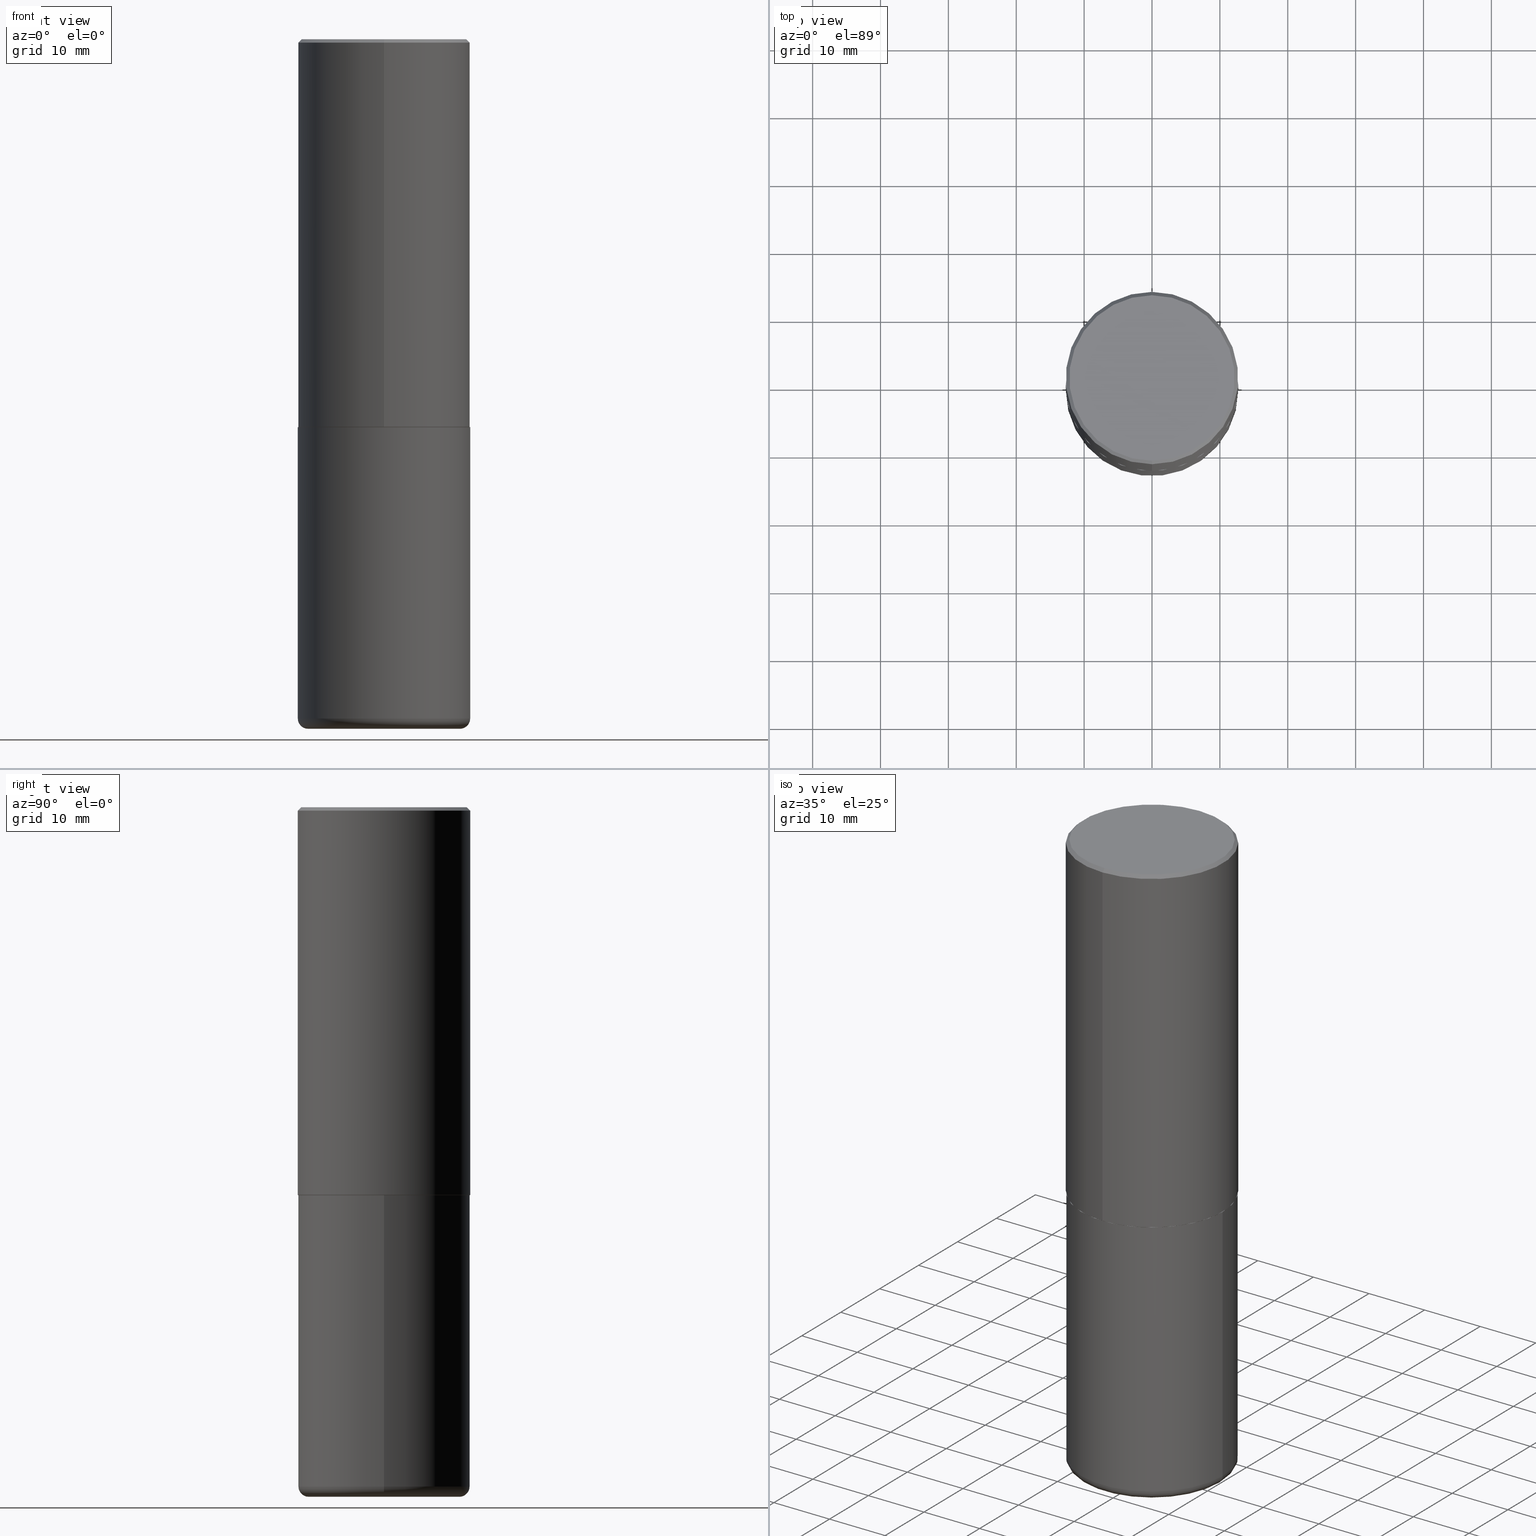
[diagram: canonical four-view strip — front | top / right | iso, engineering-drawing reading convention]
A machine part, canonical four-view strip (front | top / right | iso — engineering-drawing reading convention). The complete STEP part file that produces these views, byte-faithful:
ISO-10303-21;
HEADER;
FILE_DESCRIPTION (( 'STEP AP203' ),
    '1' );
FILE_NAME ('36129.STEP',
    '2024-03-01T15:52:18',
    ( '' ),
    ( '' ),
    'SwSTEP 2.0',
    'SolidWorks 2023',
    '' );
FILE_SCHEMA (( 'CONFIG_CONTROL_DESIGN' ));
ENDSEC;

DATA;
#1 = DIRECTION ( 'NONE',  ( 1.000000000000000000, -6.982962677686266711E-15, 0.000000000000000000 ) ) ;
#2 = ORGANIZATION ( 'UNSPECIFIED', 'UNSPECIFIED', '' ) ;
#3 = DIRECTION ( 'NONE',  ( -6.982962677686265922E-15, -1.000000000000000000, 3.491643216902136408E-15 ) ) ;
#4 = ADVANCED_FACE ( 'NONE', ( #365 ), #34, .T. ) ;
#5 = CARTESIAN_POINT ( 'NONE',  ( -0.5000000000000000000, 3.552713678800500929E-15, -2.459467545127452891E-29 ) ) ;
#6 = DIRECTION ( 'NONE',  ( -2.446529474774470711E-29, 3.489962401053712253E-15, 1.000000000000000000 ) ) ;
#7 = CARTESIAN_POINT ( 'NONE',  ( 0.4400000000000000022, -1.682894005322395074E-14, -3.939999999999999947 ) ) ;
#8 = CARTESIAN_POINT ( 'NONE',  ( 0.000000000000000000, 0.000000000000000000, 0.000000000000000000 ) ) ;
#9 = DIRECTION ( 'NONE',  ( -2.446529474774470711E-29, 3.489962401053712253E-15, 1.000000000000000000 ) ) ;
#10 = EDGE_CURVE ( 'NONE', #362, #141, #398, .T. ) ;
#11 = APPLICATION_CONTEXT ( 'configuration controlled 3d designs of mechanical parts and assemblies' ) ;
#12 = FACE_OUTER_BOUND ( 'NONE', #15, .T. ) ;
#13 = CIRCLE ( 'NONE', #256, 0.05999999999999997696 ) ;
#14 = DIRECTION ( 'NONE',  ( 2.438088387897960049E-29, -3.491481338843145188E-15, -1.000000000000000000 ) ) ;
#15 = EDGE_LOOP ( 'NONE', ( #271, #108, #394, #323 ) ) ;
#16 = PRODUCT_DEFINITION ( 'UNKNOWN', '', #72, #207 ) ;
#17 = ORIENTED_EDGE ( 'NONE', *, *, #296, .T. ) ;
#18 = FACE_OUTER_BOUND ( 'NONE', #206, .T. ) ;
#19 = DIRECTION ( 'NONE',  ( -2.445468806185136877E-29, 3.491481338843145188E-15, 1.000000000000000000 ) ) ;
#20 = AXIS2_PLACEMENT_3D ( 'NONE', #44, #14, #107 ) ;
#21 = AXIS2_PLACEMENT_3D ( 'NONE', #8, #340, #76 ) ;
#22 = AXIS2_PLACEMENT_3D ( 'NONE', #186, #409, #373 ) ;
#23 = DIRECTION ( 'NONE',  ( -2.446529474774470711E-29, 3.489962401053712253E-15, 1.000000000000000000 ) ) ;
#24 = ORIENTED_EDGE ( 'NONE', *, *, #221, .T. ) ;
#25 = APPROVAL_PERSON_ORGANIZATION ( #268, #381, #389 ) ;
#26 = EDGE_LOOP ( 'NONE', ( #328, #80, #267, #232 ) ) ;
#27 = PERSON_AND_ORGANIZATION_ROLE ( 'creator' ) ;
#28 = FACE_OUTER_BOUND ( 'NONE', #248, .T. ) ;
#29 = CC_DESIGN_PERSON_AND_ORGANIZATION_ASSIGNMENT ( #374, #60, ( #212 ) ) ;
#30 = PERSON_AND_ORGANIZATION ( #43, #2 ) ;
#31 =( CONVERSION_BASED_UNIT ( 'INCH', #166 ) LENGTH_UNIT ( ) NAMED_UNIT ( #250 ) );
#32 = CARTESIAN_POINT ( 'NONE',  ( 5.502304813916557343E-29, -7.855833012397078448E-15, -2.250000000000000000 ) ) ;
#33 = DIRECTION ( 'NONE',  ( -6.982962677686265922E-15, -1.000000000000000000, 3.284787166730577015E-15 ) ) ;
#34 = CONICAL_SURFACE ( 'NONE', #50, 0.4989999999999999991, 0.7853981633975507526 ) ;
#35 = SECURITY_CLASSIFICATION ( '', '', #98 ) ;
#36 = DIRECTION ( 'NONE',  ( 2.446529474774470711E-29, -3.489962401053712253E-15, -1.000000000000000000 ) ) ;
#37 = PRODUCT_DEFINITION_SHAPE ( 'NONE', 'NONE',  #16 ) ;
#38 = CYLINDRICAL_SURFACE ( 'NONE', #231, 0.5000000000000001110 ) ;
#39 = CARTESIAN_POINT ( 'NONE',  ( 5.504691318242558820E-29, -7.852415402370853556E-15, -2.250000000000000000 ) ) ;
#40 = CARTESIAN_POINT ( 'NONE',  ( 0.000000000000000000, 0.000000000000000000, 0.000000000000000000 ) ) ;
#41 = PLANE ( 'NONE',  #20 ) ;
#42 = ORIENTED_EDGE ( 'NONE', *, *, #147, .T. ) ;
#43 = PERSON ( 'UNSPECIFIED', 'UNSPECIFIED', 'UNSPECIFIED', ('UNSPECIFIED'), ('UNSPECIFIED'), ('UNSPECIFIED') ) ;
#44 = CARTESIAN_POINT ( 'NONE',  ( 5.502304813916557343E-29, -7.855833012397078448E-15, -2.250000000000000000 ) ) ;
#45 = ORIENTED_EDGE ( 'NONE', *, *, #99, .F. ) ;
#46 = CARTESIAN_POINT ( 'NONE',  ( 5.504691318242558820E-29, -7.852415402370853556E-15, -2.250000000000000000 ) ) ;
#47 = PERSON_AND_ORGANIZATION ( #43, #2 ) ;
#48 = APPROVAL_ROLE ( '' ) ;
#49 = DIRECTION ( 'NONE',  ( -6.982962677686266711E-15, -1.000000000000000000, 3.278217592397114284E-15 ) ) ;
#50 = AXIS2_PLACEMENT_3D ( 'NONE', #274, #6, #133 ) ;
#51 = CC_DESIGN_SECURITY_CLASSIFICATION ( #35, ( #72 ) ) ;
#52 = ADVANCED_FACE ( 'NONE', ( #12 ), #100, .T. ) ;
#53 = FACE_OUTER_BOUND ( 'NONE', #196, .T. ) ;
#54 = COORDINATED_UNIVERSAL_TIME_OFFSET ( 5, 0, .BEHIND. ) ;
#55 = CARTESIAN_POINT ( 'NONE',  ( 0.4400000000000000022, -1.703842893355454063E-14, -4.000000000000000000 ) ) ;
#56 = AXIS2_PLACEMENT_3D ( 'NONE', #163, #361, #331 ) ;
#57 = CARTESIAN_POINT ( 'NONE',  ( 4.893058949548968117E-31, -6.979924802107460893E-17, -0.02000000000000010797 ) ) ;
#58 = VECTOR ( 'NONE', #330, 39.37007874015748143 ) ;
#59 = LOCAL_TIME ( 10, 52, 18.00000000000000000, #165 ) ;
#60 = PERSON_AND_ORGANIZATION_ROLE ( 'design_owner' ) ;
#61 = ORIENTED_EDGE ( 'NONE', *, *, #296, .F. ) ;
#62 = EDGE_CURVE ( 'NONE', #336, #170, #401, .T. ) ;
#63 = APPLICATION_PROTOCOL_DEFINITION ( 'international standard', 'config_control_design', 1994, #78 ) ;
#64 = VECTOR ( 'NONE', #169, 39.37007874015748143 ) ;
#65 = DIRECTION ( 'NONE',  ( -2.445468806185136597E-29, 3.491481338843145583E-15, 1.000000000000000000 ) ) ;
#66 = ADVANCED_FACE ( 'NONE', ( #252 ), #312, .T. ) ;
#67 = VERTEX_POINT ( 'NONE', #308 ) ;
#68 = DATE_AND_TIME ( #197, #172 ) ;
#69 = CYLINDRICAL_SURFACE ( 'NONE', #257, 0.5000000000000000000 ) ;
#70 = DIRECTION ( 'NONE',  ( 1.000000000000000000, -6.982962677686266711E-15, 0.000000000000000000 ) ) ;
#71 = ORIENTED_EDGE ( 'NONE', *, *, #171, .T. ) ;
#72 = PRODUCT_DEFINITION_FORMATION_WITH_SPECIFIED_SOURCE ( 'ANY', '', #212, .NOT_KNOWN. ) ;
#73 = ORIENTED_EDGE ( 'NONE', *, *, #149, .T. ) ;
#74 = MECHANICAL_CONTEXT ( 'NONE', #11, 'mechanical' ) ;
#75 = LINE ( 'NONE', #5, #58 ) ;
#76 = DIRECTION ( 'NONE',  ( -6.982962677686265922E-15, -1.000000000000000000, 3.489962401053712253E-15 ) ) ;
#77 = EDGE_CURVE ( 'NONE', #410, #158, #280, .T. ) ;
#78 = APPLICATION_CONTEXT ( 'configuration controlled 3d designs of mechanical parts and assemblies' ) ;
#79 = FACE_OUTER_BOUND ( 'NONE', #190, .T. ) ;
#80 = ORIENTED_EDGE ( 'NONE', *, *, #195, .T. ) ;
#81 = CARTESIAN_POINT ( 'NONE',  ( -6.039126734728155395E-45, 8.614784925631203934E-31, 2.468446342868958109E-16 ) ) ;
#82 = ORIENTED_EDGE ( 'NONE', *, *, #127, .F. ) ;
#83 = CIRCLE ( 'NONE', #320, 0.4799999999999996492 ) ;
#84 = AXIS2_PLACEMENT_3D ( 'NONE', #7, #210, #397 ) ;
#85 = DIRECTION ( 'NONE',  ( -6.982962677686265922E-15, -1.000000000000000000, 3.489962401053711859E-15 ) ) ;
#86 = ADVANCED_FACE ( 'NONE', ( #345 ), #151, .T. ) ;
#87 = ORIENTED_EDGE ( 'NONE', *, *, #403, .T. ) ;
#88 = CARTESIAN_POINT ( 'NONE',  ( 9.635147096369438236E-29, -1.375643647504199401E-14, -3.939999999999999947 ) ) ;
#89 = CARTESIAN_POINT ( 'NONE',  ( 4.893058949548968117E-31, -6.979924802107460893E-17, -0.02000000000000010797 ) ) ;
#90 = CLOSED_SHELL ( 'NONE', ( #52, #66, #408, #86, #258, #4, #377, #327 ) ) ;
#91 = DIRECTION ( 'NONE',  ( -2.445468806185136597E-29, 3.491481338843145583E-15, 1.000000000000000000 ) ) ;
#92 = ADVANCED_BREP_SHAPE_REPRESENTATION ( '36129', ( #276, #405, #94 ), #375 ) ;
#93 = VECTOR ( 'NONE', #254, 39.37007874015748143 ) ;
#94 = AXIS2_PLACEMENT_3D ( 'NONE', #40, #96, #125 ) ;
#95 = DIRECTION ( 'NONE',  ( -2.446529474774470711E-29, 3.489962401053712253E-15, 1.000000000000000000 ) ) ;
#96 = DIRECTION ( 'NONE',  ( 0.000000000000000000, 0.000000000000000000, 1.000000000000000000 ) ) ;
#97 = CARTESIAN_POINT ( 'NONE',  ( -6.039126734728155395E-45, 8.614784925631203934E-31, 2.468446342868958109E-16 ) ) ;
#98 = SECURITY_CLASSIFICATION_LEVEL ( 'unclassified' ) ;
#99 = EDGE_CURVE ( 'NONE', #362, #410, #213, .T. ) ;
#100 = CONICAL_SURFACE ( 'NONE', #315, 0.4989999999999999991, 0.7853981633975507526 ) ;
#101 = AXIS2_PLACEMENT_3D ( 'NONE', #32, #106, #295 ) ;
#102 = VERTEX_POINT ( 'NONE', #404 ) ;
#103 = PLANE ( 'NONE',  #117 ) ;
#104 = ORIENTED_EDGE ( 'NONE', *, *, #351, .T. ) ;
#105 = COORDINATED_UNIVERSAL_TIME_OFFSET ( 5, 0, .BEHIND. ) ;
#106 = DIRECTION ( 'NONE',  ( -2.445468806185136597E-29, 3.491481338843145583E-15, 1.000000000000000000 ) ) ;
#107 = DIRECTION ( 'NONE',  ( -1.000000000000000000, 6.982962677686265922E-15, -4.876176775795935793E-29 ) ) ;
#108 = ORIENTED_EDGE ( 'NONE', *, *, #265, .T. ) ;
#109 = CARTESIAN_POINT ( 'NONE',  ( 9.781875224740546387E-29, -1.396592535537258233E-14, -4.000000000000000000 ) ) ;
#110 = AXIS2_PLACEMENT_3D ( 'NONE', #343, #179, #290 ) ;
#111 = ORIENTED_EDGE ( 'NONE', *, *, #171, .F. ) ;
#112 = EDGE_LOOP ( 'NONE', ( #123, #24, #334, #45 ) ) ;
#113 = ORIENTED_EDGE ( 'NONE', *, *, #333, .F. ) ;
#114 = EDGE_CURVE ( 'NONE', #67, #132, #176, .T. ) ;
#115 = ORIENTED_EDGE ( 'NONE', *, *, #396, .F. ) ;
#116 = VECTOR ( 'NONE', #305, 39.37007874015748143 ) ;
#117 = AXIS2_PLACEMENT_3D ( 'NONE', #193, #272, #363 ) ;
#118 = DIRECTION ( 'NONE',  ( -4.851104656540961119E-15, -0.7071067811865495711, -0.7071067811865454633 ) ) ;
#119 = DIRECTION ( 'NONE',  ( -2.445468806185136597E-29, 3.491481338843145583E-15, 1.000000000000000000 ) ) ;
#120 = ADVANCED_FACE ( 'NONE', ( #53 ), #242, .T. ) ;
#121 = VERTEX_POINT ( 'NONE', #292 ) ;
#122 = CC_DESIGN_DATE_AND_TIME_ASSIGNMENT ( #68, #329, ( #35 ) ) ;
#123 = ORIENTED_EDGE ( 'NONE', *, *, #265, .F. ) ;
#124 = DATE_TIME_ROLE ( 'creation_date' ) ;
#125 = DIRECTION ( 'NONE',  ( 1.000000000000000000, 0.000000000000000000, 0.000000000000000000 ) ) ;
#126 = CARTESIAN_POINT ( 'NONE',  ( -0.5000000000000000000, -7.253421064919035302E-15, -2.250000000000000000 ) ) ;
#127 = EDGE_CURVE ( 'NONE', #164, #132, #380, .T. ) ;
#128 = PERSON_AND_ORGANIZATION ( #43, #2 ) ;
#129 = VERTEX_POINT ( 'NONE', #286 ) ;
#130 = SHAPE_DEFINITION_REPRESENTATION ( #37, #92 ) ;
#131 = AXIS2_PLACEMENT_3D ( 'NONE', #360, #417, #1 ) ;
#132 = VERTEX_POINT ( 'NONE', #407 ) ;
#133 = DIRECTION ( 'NONE',  ( -6.982962677686265922E-15, -1.000000000000000000, 3.284787166730577015E-15 ) ) ;
#134 = CALENDAR_DATE ( 2024, 1, 3 ) ;
#135 = CARTESIAN_POINT ( 'NONE',  ( 0.000000000000000000, 0.000000000000000000, 0.000000000000000000 ) ) ;
#136 = CARTESIAN_POINT ( 'NONE',  ( 3.545608251442954353E-15, 0.4989999999999921165, -2.250000000000001776 ) ) ;
#137 = ORIENTED_EDGE ( 'NONE', *, *, #62, .F. ) ;
#138 = AXIS2_PLACEMENT_3D ( 'NONE', #287, #91, #379 ) ;
#139 = ORIENTED_EDGE ( 'NONE', *, *, #235, .T. ) ;
#140 = CARTESIAN_POINT ( 'NONE',  ( 0.000000000000000000, 0.000000000000000000, 0.000000000000000000 ) ) ;
#141 = VERTEX_POINT ( 'NONE', #180 ) ;
#142 = ADVANCED_FACE ( 'NONE', ( #317 ), #319, .T. ) ;
#143 = ORIENTED_EDGE ( 'NONE', *, *, #288, .F. ) ;
#144 = AXIS2_PLACEMENT_3D ( 'NONE', #378, #146, #49 ) ;
#145 = LINE ( 'NONE', #346, #293 ) ;
#146 = DIRECTION ( 'NONE',  ( -2.446529474774470711E-29, 3.489962401053712253E-15, 1.000000000000000000 ) ) ;
#147 = EDGE_CURVE ( 'NONE', #102, #158, #145, .T. ) ;
#148 = DIRECTION ( 'NONE',  ( 6.982962677686265922E-15, 1.000000000000000000, -3.491643216902136408E-15 ) ) ;
#149 = EDGE_CURVE ( 'NONE', #410, #362, #269, .T. ) ;
#150 = VERTEX_POINT ( 'NONE', #55 ) ;
#151 = CONICAL_SURFACE ( 'NONE', #384, 0.5000000000000000000, 0.7853981633974477239 ) ;
#152 = PLANE ( 'NONE',  #22 ) ;
#153 = ORIENTED_EDGE ( 'NONE', *, *, #195, .F. ) ;
#154 = PERSON_AND_ORGANIZATION ( #43, #2 ) ;
#155 = DIRECTION ( 'NONE',  ( 1.000000000000000000, -6.982962677686266711E-15, 0.000000000000000000 ) ) ;
#156 = EDGE_CURVE ( 'NONE', #391, #121, #13, .T. ) ;
#157 = APPROVAL_STATUS ( 'not_yet_approved' ) ;
#158 = VERTEX_POINT ( 'NONE', #414 ) ;
#159 = APPROVAL_DATE_TIME ( #191, #381 ) ;
#160 = FACE_OUTER_BOUND ( 'NONE', #353, .T. ) ;
#161 = CIRCLE ( 'NONE', #300, 0.4989999999999999991 ) ;
#162 = AXIS2_PLACEMENT_3D ( 'NONE', #81, #95, #85 ) ;
#163 = CARTESIAN_POINT ( 'NONE',  ( 9.781875224740546387E-29, -1.396592535537258233E-14, -4.000000000000000000 ) ) ;
#164 = VERTEX_POINT ( 'NONE', #126 ) ;
#165 = COORDINATED_UNIVERSAL_TIME_OFFSET ( 5, 0, .BEHIND. ) ;
#166 = LENGTH_MEASURE_WITH_UNIT ( LENGTH_MEASURE( 0.02539999999999999897 ), #204 );
#167 = DIRECTION ( 'NONE',  ( -6.982962677686265922E-15, -1.000000000000000000, 3.489962401053712253E-15 ) ) ;
#168 = ORIENTED_EDGE ( 'NONE', *, *, #344, .F. ) ;
#169 = DIRECTION ( 'NONE',  ( -4.937700262165053702E-15, -0.7071067811866175168, 0.7071067811864775177 ) ) ;
#170 = VERTEX_POINT ( 'NONE', #266 ) ;
#171 = EDGE_CURVE ( 'NONE', #129, #102, #83, .T. ) ;
#172 = LOCAL_TIME ( 10, 52, 18.00000000000000000, #105 ) ;
#173 = ORIENTED_EDGE ( 'NONE', *, *, #114, .F. ) ;
#174 = CARTESIAN_POINT ( 'NONE',  ( 9.635147096369438236E-29, -1.375643647504199401E-14, -3.939999999999999947 ) ) ;
#175 = DIRECTION ( 'NONE',  ( -2.446529474774470711E-29, 3.489962401053712253E-15, 1.000000000000000000 ) ) ;
#176 = LINE ( 'NONE', #376, #324 ) ;
#177 = AXIS2_PLACEMENT_3D ( 'NONE', #230, #234, #413 ) ;
#178 = ADVANCED_FACE ( 'NONE', ( #307 ), #352, .T. ) ;
#179 = DIRECTION ( 'NONE',  ( -2.446529474774470711E-29, 3.489962401053712253E-15, 1.000000000000000000 ) ) ;
#180 = CARTESIAN_POINT ( 'NONE',  ( 3.491481338843133355E-15, 0.4999999999999999445, -0.02000000000000185310 ) ) ;
#181 = CARTESIAN_POINT ( 'NONE',  ( 0.000000000000000000, 0.000000000000000000, 0.000000000000000000 ) ) ;
#182 = ADVANCED_FACE ( 'NONE', ( #368 ), #41, .F. ) ;
#183 = AXIS2_PLACEMENT_3D ( 'NONE', #174, #205, #236 ) ;
#184 = CC_DESIGN_APPROVAL ( #371, ( #16 ) ) ;
#185 = CC_DESIGN_DATE_AND_TIME_ASSIGNMENT ( #416, #124, ( #16 ) ) ;
#186 = CARTESIAN_POINT ( 'NONE',  ( 3.351822085289405181E-15, 0.4799999999999996492, -1.551759635362332947E-15 ) ) ;
#187 = DIRECTION ( 'NONE',  ( 7.105427357601001859E-15, 1.000000000000000000, -3.491481338843145583E-15 ) ) ;
#188 = ORIENTED_EDGE ( 'NONE', *, *, #415, .F. ) ;
#189 = DIRECTION ( 'NONE',  ( -1.000000000000000000, 7.105427357600993970E-15, 0.000000000000000000 ) ) ;
#190 = EDGE_LOOP ( 'NONE', ( #188, #153 ) ) ;
#191 = DATE_AND_TIME ( #354, #59 ) ;
#192 = AXIS2_PLACEMENT_3D ( 'NONE', #181, #321, #219 ) ;
#193 = CARTESIAN_POINT ( 'NONE',  ( 5.504691318242558820E-29, -7.852415402370853556E-15, -2.250000000000000000 ) ) ;
#194 = CIRCLE ( 'NONE', #291, 0.5000000000000000000 ) ;
#195 = EDGE_CURVE ( 'NONE', #391, #150, #261, .T. ) ;
#196 = EDGE_LOOP ( 'NONE', ( #349, #208, #113, #143 ) ) ;
#197 = CALENDAR_DATE ( 2024, 1, 3 ) ;
#198 = CARTESIAN_POINT ( 'NONE',  ( 4.893058949548968117E-31, -6.979924802107460893E-17, -0.02000000000000010797 ) ) ;
#199 = ORIENTED_EDGE ( 'NONE', *, *, #221, .F. ) ;
#200 = PERSON_AND_ORGANIZATION_ROLE ( 'creator' ) ;
#201 = DIRECTION ( 'NONE',  ( 6.982962677686265922E-15, 1.000000000000000000, -3.491643216902136408E-15 ) ) ;
#202 = CARTESIAN_POINT ( 'NONE',  ( 5.504691318242558820E-29, -7.852415402370853556E-15, -2.250000000000000000 ) ) ;
#203 = APPROVAL_DATE_TIME ( #418, #341 ) ;
#204 =( LENGTH_UNIT ( ) NAMED_UNIT ( * ) SI_UNIT ( $, .METRE. ) );
#205 = DIRECTION ( 'NONE',  ( -2.445468806185136597E-29, 3.491481338843145583E-15, 1.000000000000000000 ) ) ;
#206 = EDGE_LOOP ( 'NONE', ( #71, #17 ) ) ;
#207 = DESIGN_CONTEXT ( 'detailed design', #78, 'design' ) ;
#208 = ORIENTED_EDGE ( 'NONE', *, *, #156, .T. ) ;
#209 = EDGE_CURVE ( 'NONE', #121, #164, #75, .T. ) ;
#210 = DIRECTION ( 'NONE',  ( -6.982962677686266711E-15, -1.000000000000000000, 3.491481338843145583E-15 ) ) ;
#211 = ORIENTED_EDGE ( 'NONE', *, *, #77, .T. ) ;
#212 = PRODUCT ( '36129', '36129', '', ( #74 ) ) ;
#213 = CIRCLE ( 'NONE', #144, 0.5000000000000002220 ) ;
#214 = CIRCLE ( 'NONE', #84, 0.05999999999999997696 ) ;
#215 = EDGE_LOOP ( 'NONE', ( #61, #42, #339, #284 ) ) ;
#216 = DIRECTION ( 'NONE',  ( -2.446529474774470711E-29, 3.489962401053712253E-15, 1.000000000000000000 ) ) ;
#217 = DATE_AND_TIME ( #243, #347 ) ;
#218 = AXIS2_PLACEMENT_3D ( 'NONE', #46, #175, #245 ) ;
#219 = DIRECTION ( 'NONE',  ( 1.000000000000000000, -6.982962677686266711E-15, 4.876176775795935793E-29 ) ) ;
#220 = CIRCLE ( 'NONE', #177, 0.5000000000000000000 ) ;
#221 = EDGE_CURVE ( 'NONE', #170, #336, #161, .T. ) ;
#222 = DIRECTION ( 'NONE',  ( -2.445468806185136597E-29, 3.491481338843145583E-15, 1.000000000000000000 ) ) ;
#223 = CLOSED_SHELL ( 'NONE', ( #142, #120, #182, #390, #178, #226 ) ) ;
#224 = APPROVAL_PERSON_ORGANIZATION ( #30, #341, #275 ) ;
#225 = APPROVAL_DATE_TIME ( #217, #371 ) ;
#226 = ADVANCED_FACE ( 'NONE', ( #79 ), #239, .T. ) ;
#227 = APPROVAL_STATUS ( 'not_yet_approved' ) ;
#228 = CARTESIAN_POINT ( 'NONE',  ( -3.484498376165391726E-15, -0.4990000000000078262, -2.249999999999998224 ) ) ;
#229 = PERSON_AND_ORGANIZATION ( #43, #2 ) ;
#230 = CARTESIAN_POINT ( 'NONE',  ( 4.893058949548968117E-31, -6.979924802107460893E-17, -0.02000000000000010797 ) ) ;
#231 = AXIS2_PLACEMENT_3D ( 'NONE', #140, #338, #167 ) ;
#232 = ORIENTED_EDGE ( 'NONE', *, *, #403, .F. ) ;
#233 = PERSON_AND_ORGANIZATION_ROLE ( 'design_supplier' ) ;
#234 = DIRECTION ( 'NONE',  ( -2.446529474774470711E-29, 3.489962401053712253E-15, 1.000000000000000000 ) ) ;
#235 = EDGE_CURVE ( 'NONE', #129, #141, #301, .T. ) ;
#236 = DIRECTION ( 'NONE',  ( 1.000000000000000000, -6.982962677686266711E-15, 4.883557194083113462E-29 ) ) ;
#237 = COORDINATED_UNIVERSAL_TIME_OFFSET ( 5, 0, .BEHIND. ) ;
#238 = CARTESIAN_POINT ( 'NONE',  ( 3.552713678800530117E-15, 0.4999999999999925060, -2.249000000000001442 ) ) ;
#239 = PLANE ( 'NONE',  #56 ) ;
#240 = EDGE_LOOP ( 'NONE', ( #104, #262 ) ) ;
#241 =( NAMED_UNIT ( * ) SI_UNIT ( $, .STERADIAN. ) SOLID_ANGLE_UNIT ( ) );
#242 = TOROIDAL_SURFACE ( 'NONE', #406, 0.4400000000000000022, 0.05999999999999994227 ) ;
#243 = CALENDAR_DATE ( 2024, 1, 3 ) ;
#244 = AXIS2_PLACEMENT_3D ( 'NONE', #198, #36, #201 ) ;
#245 = DIRECTION ( 'NONE',  ( -6.982962677686265922E-15, -1.000000000000000000, 3.284787166730577015E-15 ) ) ;
#246 = FACE_OUTER_BOUND ( 'NONE', #400, .T. ) ;
#247 = EDGE_LOOP ( 'NONE', ( #388, #111, #139, #306 ) ) ;
#248 = EDGE_LOOP ( 'NONE', ( #310, #87, #325, #82 ) ) ;
#249 = AXIS2_PLACEMENT_3D ( 'NONE', #109, #357, #70 ) ;
#250 = DIMENSIONAL_EXPONENTS ( 1.000000000000000000, 0.000000000000000000, 0.000000000000000000, 0.000000000000000000, 0.000000000000000000, 0.000000000000000000, 0.000000000000000000 ) ;
#251 = LOCAL_TIME ( 10, 52, 18.00000000000000000, #303 ) ;
#252 = FACE_OUTER_BOUND ( 'NONE', #385, .T. ) ;
#253 = PERSON_AND_ORGANIZATION ( #43, #2 ) ;
#254 = DIRECTION ( 'NONE',  ( -2.446529474774470711E-29, 3.489962401053712253E-15, 1.000000000000000000 ) ) ;
#255 = APPROVAL_STATUS ( 'not_yet_approved' ) ;
#256 = AXIS2_PLACEMENT_3D ( 'NONE', #412, #187, #189 ) ;
#257 = AXIS2_PLACEMENT_3D ( 'NONE', #135, #392, #297 ) ;
#258 = ADVANCED_FACE ( 'NONE', ( #246 ), #38, .T. ) ;
#259 = CARTESIAN_POINT ( 'NONE',  ( -3.484498376165391726E-15, -0.4990000000000078262, -2.249999999999998224 ) ) ;
#260 = CARTESIAN_POINT ( 'NONE',  ( 9.635147096369438236E-29, -1.375643647504199401E-14, -3.939999999999999947 ) ) ;
#261 = CIRCLE ( 'NONE', #249, 0.4400000000000000022 ) ;
#262 = ORIENTED_EDGE ( 'NONE', *, *, #127, .T. ) ;
#263 = APPROVAL_PERSON_ORGANIZATION ( #253, #371, #48 ) ;
#264 = DIRECTION ( 'NONE',  ( 1.000000000000000000, -6.982962677686266711E-15, 0.000000000000000000 ) ) ;
#265 = EDGE_CURVE ( 'NONE', #170, #362, #281, .T. ) ;
#266 = CARTESIAN_POINT ( 'NONE',  ( 3.549160965121755646E-15, 0.4989999999999921165, -2.250000000000001776 ) ) ;
#267 = ORIENTED_EDGE ( 'NONE', *, *, #288, .T. ) ;
#268 = PERSON_AND_ORGANIZATION ( #43, #2 ) ;
#269 = CIRCLE ( 'NONE', #110, 0.5000000000000002220 ) ;
#270 = CIRCLE ( 'NONE', #101, 0.5000000000000000000 ) ;
#271 = ORIENTED_EDGE ( 'NONE', *, *, #62, .T. ) ;
#272 = DIRECTION ( 'NONE',  ( -2.446529474774470431E-29, 3.489962401053712253E-15, 1.000000000000000000 ) ) ;
#273 = DIRECTION ( 'NONE',  ( -6.982962677686265922E-15, -1.000000000000000000, 3.489962401053711859E-15 ) ) ;
#274 = CARTESIAN_POINT ( 'NONE',  ( 5.504691318242558820E-29, -7.852415402370853556E-15, -2.250000000000000000 ) ) ;
#275 = APPROVAL_ROLE ( '' ) ;
#276 = MANIFOLD_SOLID_BREP ( 'Body-Move/Copy2[1]', #223 ) ;
#277 = DIRECTION ( 'NONE',  ( -2.446529474774470711E-29, 3.489962401053712253E-15, 1.000000000000000000 ) ) ;
#278 = CC_DESIGN_APPROVAL ( #341, ( #35 ) ) ;
#279 = CARTESIAN_POINT ( 'NONE',  ( 3.491481338843133355E-15, 0.4999999999999999445, -0.02000000000000185310 ) ) ;
#280 = LINE ( 'NONE', #342, #93 ) ;
#281 = LINE ( 'NONE', #136, #116 ) ;
#282 = EDGE_LOOP ( 'NONE', ( #294, #372, #364, #173 ) ) ;
#283 = CC_DESIGN_PERSON_AND_ORGANIZATION_ASSIGNMENT ( #229, #299, ( #35 ) ) ;
#284 = ORIENTED_EDGE ( 'NONE', *, *, #235, .F. ) ;
#285 = VECTOR ( 'NONE', #311, 39.37007874015748143 ) ;
#286 = CARTESIAN_POINT ( 'NONE',  ( 3.421651712066269268E-15, 0.4799999999999996492, -1.428337318218884943E-15 ) ) ;
#287 = CARTESIAN_POINT ( 'NONE',  ( 5.502304813916557343E-29, -7.855833012397078448E-15, -2.250000000000000000 ) ) ;
#288 = EDGE_CURVE ( 'NONE', #150, #67, #214, .T. ) ;
#289 = VECTOR ( 'NONE', #277, 39.37007874015748143 ) ;
#290 = DIRECTION ( 'NONE',  ( -6.982962677686266711E-15, -1.000000000000000000, 3.278217592397114284E-15 ) ) ;
#291 = AXIS2_PLACEMENT_3D ( 'NONE', #57, #23, #3 ) ;
#292 = CARTESIAN_POINT ( 'NONE',  ( -0.5000000000000000000, -1.020372279624149466E-14, -3.939999999999999947 ) ) ;
#293 = VECTOR ( 'NONE', #118, 39.37007874015748143 ) ;
#294 = ORIENTED_EDGE ( 'NONE', *, *, #333, .T. ) ;
#295 = DIRECTION ( 'NONE',  ( 1.000000000000000000, -6.982962677686269077E-15, 0.000000000000000000 ) ) ;
#296 = EDGE_CURVE ( 'NONE', #102, #129, #382, .T. ) ;
#297 = DIRECTION ( 'NONE',  ( 1.000000000000000000, -6.982962677686266711E-15, 4.876176775795935793E-29 ) ) ;
#298 = ORIENTED_EDGE ( 'NONE', *, *, #77, .F. ) ;
#299 = PERSON_AND_ORGANIZATION_ROLE ( 'classification_officer' ) ;
#300 = AXIS2_PLACEMENT_3D ( 'NONE', #202, #9, #33 ) ;
#301 = LINE ( 'NONE', #279, #285 ) ;
#302 = ORIENTED_EDGE ( 'NONE', *, *, #10, .F. ) ;
#303 = COORDINATED_UNIVERSAL_TIME_OFFSET ( 5, 0, .BEHIND. ) ;
#304 =( NAMED_UNIT ( * ) PLANE_ANGLE_UNIT ( ) SI_UNIT ( $, .RADIAN. ) );
#305 = DIRECTION ( 'NONE',  ( 5.024295867788576727E-15, 0.7071067811866224018, 0.7071067811864726327 ) ) ;
#306 = ORIENTED_EDGE ( 'NONE', *, *, #344, .T. ) ;
#307 = FACE_OUTER_BOUND ( 'NONE', #26, .T. ) ;
#308 = CARTESIAN_POINT ( 'NONE',  ( 0.5000000000000000000, -1.724791781388512737E-14, -3.939999999999999947 ) ) ;
#309 = CC_DESIGN_PERSON_AND_ORGANIZATION_ASSIGNMENT ( #154, #233, ( #72 ) ) ;
#310 = ORIENTED_EDGE ( 'NONE', *, *, #209, .F. ) ;
#311 = DIRECTION ( 'NONE',  ( 4.937700262164544887E-15, 0.7071067811865446862, -0.7071067811865503483 ) ) ;
#312 = CYLINDRICAL_SURFACE ( 'NONE', #21, 0.5000000000000001110 ) ;
#313 = DIRECTION ( 'NONE',  ( 2.446529474774470711E-29, -3.489962401053712253E-15, -1.000000000000000000 ) ) ;
#314 = CC_DESIGN_PERSON_AND_ORGANIZATION_ASSIGNMENT ( #128, #200, ( #72 ) ) ;
#315 = AXIS2_PLACEMENT_3D ( 'NONE', #39, #216, #369 ) ;
#316 = LOCAL_TIME ( 10, 52, 18.00000000000000000, #237 ) ;
#317 = FACE_OUTER_BOUND ( 'NONE', #282, .T. ) ;
#318 = DIRECTION ( 'NONE',  ( 1.000000000000000000, -6.982962677686266711E-15, 4.883557194083113462E-29 ) ) ;
#319 = CYLINDRICAL_SURFACE ( 'NONE', #192, 0.5000000000000000000 ) ;
#320 = AXIS2_PLACEMENT_3D ( 'NONE', #97, #399, #273 ) ;
#321 = DIRECTION ( 'NONE',  ( -2.445468806185136597E-29, 3.491481338843145583E-15, 1.000000000000000000 ) ) ;
#322 = CIRCLE ( 'NONE', #411, 0.5000000000000000000 ) ;
#323 = ORIENTED_EDGE ( 'NONE', *, *, #366, .F. ) ;
#324 = VECTOR ( 'NONE', #19, 39.37007874015748143 ) ;
#325 = ORIENTED_EDGE ( 'NONE', *, *, #114, .T. ) ;
#326 = APPLICATION_PROTOCOL_DEFINITION ( 'international standard', 'config_control_design', 1994, #11 ) ;
#327 = ADVANCED_FACE ( 'NONE', ( #18 ), #152, .F. ) ;
#328 = ORIENTED_EDGE ( 'NONE', *, *, #156, .F. ) ;
#329 = DATE_TIME_ROLE ( 'classification_date' ) ;
#330 = DIRECTION ( 'NONE',  ( -2.445468806185136877E-29, 3.491481338843145188E-15, 1.000000000000000000 ) ) ;
#331 = DIRECTION ( 'NONE',  ( -1.000000000000000000, 6.982962677686265922E-15, -4.876176775795935793E-29 ) ) ;
#332 = CARTESIAN_POINT ( 'NONE',  ( 3.552713678800501718E-15, 0.5000000000000001110, -1.744981200526856521E-15 ) ) ;
#333 = EDGE_CURVE ( 'NONE', #67, #121, #322, .T. ) ;
#334 = ORIENTED_EDGE ( 'NONE', *, *, #366, .T. ) ;
#335 = PRODUCT_RELATED_PRODUCT_CATEGORY ( 'detail', '', ( #212 ) ) ;
#336 = VERTEX_POINT ( 'NONE', #259 ) ;
#337 = CONICAL_SURFACE ( 'NONE', #244, 0.5000000000000000000, 0.7853981633974477239 ) ;
#338 = DIRECTION ( 'NONE',  ( -2.446529474774470711E-29, 3.489962401053712253E-15, 1.000000000000000000 ) ) ;
#339 = ORIENTED_EDGE ( 'NONE', *, *, #396, .T. ) ;
#340 = DIRECTION ( 'NONE',  ( -2.446529474774470711E-29, 3.489962401053712253E-15, 1.000000000000000000 ) ) ;
#341 = APPROVAL ( #157, 'UNSPECIFIED' ) ;
#342 = CARTESIAN_POINT ( 'NONE',  ( -3.491481338843133750E-15, -0.5000000000000001110, 1.744981200526856521E-15 ) ) ;
#343 = CARTESIAN_POINT ( 'NONE',  ( 5.502244788767783920E-29, -7.848925439969798022E-15, -2.249000000000000110 ) ) ;
#344 = EDGE_CURVE ( 'NONE', #141, #158, #194, .T. ) ;
#345 = FACE_OUTER_BOUND ( 'NONE', #247, .T. ) ;
#346 = CARTESIAN_POINT ( 'NONE',  ( -3.430248998885764992E-15, -0.5000000000000001110, -0.01999999999999835937 ) ) ;
#347 = LOCAL_TIME ( 10, 52, 18.00000000000000000, #54 ) ;
#348 = CIRCLE ( 'NONE', #131, 0.5000000000000000000 ) ;
#349 = ORIENTED_EDGE ( 'NONE', *, *, #415, .T. ) ;
#350 = CARTESIAN_POINT ( 'NONE',  ( 9.781875224740546387E-29, -1.396592535537258233E-14, -4.000000000000000000 ) ) ;
#351 = EDGE_CURVE ( 'NONE', #132, #164, #270, .T. ) ;
#352 = TOROIDAL_SURFACE ( 'NONE', #183, 0.4400000000000000022, 0.05999999999999994227 ) ;
#353 = EDGE_LOOP ( 'NONE', ( #137, #199 ) ) ;
#354 = CALENDAR_DATE ( 2024, 1, 3 ) ;
#355 = FACE_OUTER_BOUND ( 'NONE', #215, .T. ) ;
#356 = CARTESIAN_POINT ( 'NONE',  ( -3.491481338843080107E-15, -0.5000000000000081046, -2.248999999999998334 ) ) ;
#357 = DIRECTION ( 'NONE',  ( -2.445468806185136597E-29, 3.491481338843145583E-15, 1.000000000000000000 ) ) ;
#358 = ORIENTED_EDGE ( 'NONE', *, *, #10, .T. ) ;
#359 = CALENDAR_DATE ( 2024, 1, 3 ) ;
#360 = CARTESIAN_POINT ( 'NONE',  ( 9.635147096369438236E-29, -1.375643647504199401E-14, -3.939999999999999947 ) ) ;
#361 = DIRECTION ( 'NONE',  ( 2.438088387897960049E-29, -3.491481338843145188E-15, -1.000000000000000000 ) ) ;
#362 = VERTEX_POINT ( 'NONE', #238 ) ;
#363 = DIRECTION ( 'NONE',  ( -6.982962677686265922E-15, -1.000000000000000000, 3.489962401053712253E-15 ) ) ;
#364 = ORIENTED_EDGE ( 'NONE', *, *, #351, .F. ) ;
#365 = FACE_OUTER_BOUND ( 'NONE', #112, .T. ) ;
#366 = EDGE_CURVE ( 'NONE', #336, #410, #383, .T. ) ;
#367 = UNCERTAINTY_MEASURE_WITH_UNIT (LENGTH_MEASURE( 1.000000000000000082E-05 ), #31, 'distance_accuracy_value', 'NONE');
#368 = FACE_OUTER_BOUND ( 'NONE', #240, .T. ) ;
#369 = DIRECTION ( 'NONE',  ( -6.982962677686265922E-15, -1.000000000000000000, 3.284787166730577015E-15 ) ) ;
#370 = AXIS2_PLACEMENT_3D ( 'NONE', #350, #65, #155 ) ;
#371 = APPROVAL ( #255, 'UNSPECIFIED' ) ;
#372 = ORIENTED_EDGE ( 'NONE', *, *, #209, .T. ) ;
#373 = DIRECTION ( 'NONE',  ( 6.982962677686265922E-15, 1.000000000000000000, -3.489962401053712253E-15 ) ) ;
#374 = PERSON_AND_ORGANIZATION ( #43, #2 ) ;
#375 =( GEOMETRIC_REPRESENTATION_CONTEXT ( 3 ) GLOBAL_UNCERTAINTY_ASSIGNED_CONTEXT ( ( #367 ) ) GLOBAL_UNIT_ASSIGNED_CONTEXT ( ( #31, #304, #241 ) ) REPRESENTATION_CONTEXT ( 'NONE', 'WORKASPACE' ) );
#376 = CARTESIAN_POINT ( 'NONE',  ( 0.5000000000000000000, -3.491481338843133355E-15, 2.438088387897967896E-29 ) ) ;
#377 = ADVANCED_FACE ( 'NONE', ( #160 ), #103, .F. ) ;
#378 = CARTESIAN_POINT ( 'NONE',  ( 5.502244788767783920E-29, -7.848925439969798022E-15, -2.249000000000000110 ) ) ;
#379 = DIRECTION ( 'NONE',  ( 1.000000000000000000, -6.982962677686269077E-15, 0.000000000000000000 ) ) ;
#380 = CIRCLE ( 'NONE', #138, 0.5000000000000000000 ) ;
#381 = APPROVAL ( #227, 'UNSPECIFIED' ) ;
#382 = CIRCLE ( 'NONE', #162, 0.4799999999999996492 ) ;
#383 = LINE ( 'NONE', #228, #64 ) ;
#384 = AXIS2_PLACEMENT_3D ( 'NONE', #89, #313, #148 ) ;
#385 = EDGE_LOOP ( 'NONE', ( #73, #358, #115, #298 ) ) ;
#386 = CIRCLE ( 'NONE', #370, 0.4400000000000000022 ) ;
#387 = CARTESIAN_POINT ( 'NONE',  ( -0.4400000000000000022, -1.052163005713481828E-14, -4.000000000000000000 ) ) ;
#388 = ORIENTED_EDGE ( 'NONE', *, *, #147, .F. ) ;
#389 = APPROVAL_ROLE ( '' ) ;
#390 = ADVANCED_FACE ( 'NONE', ( #28 ), #69, .T. ) ;
#391 = VERTEX_POINT ( 'NONE', #387 ) ;
#392 = DIRECTION ( 'NONE',  ( -2.445468806185136597E-29, 3.491481338843145583E-15, 1.000000000000000000 ) ) ;
#393 = CC_DESIGN_PERSON_AND_ORGANIZATION_ASSIGNMENT ( #47, #27, ( #16 ) ) ;
#394 = ORIENTED_EDGE ( 'NONE', *, *, #149, .F. ) ;
#395 = ORIENTED_EDGE ( 'NONE', *, *, #99, .T. ) ;
#396 = EDGE_CURVE ( 'NONE', #158, #141, #220, .T. ) ;
#397 = DIRECTION ( 'NONE',  ( 1.000000000000000000, -6.982962677686270655E-15, 0.000000000000000000 ) ) ;
#398 = LINE ( 'NONE', #332, #289 ) ;
#399 = DIRECTION ( 'NONE',  ( -2.446529474774470711E-29, 3.489962401053712253E-15, 1.000000000000000000 ) ) ;
#400 = EDGE_LOOP ( 'NONE', ( #302, #395, #211, #168 ) ) ;
#401 = CIRCLE ( 'NONE', #218, 0.4989999999999999991 ) ;
#402 = CC_DESIGN_APPROVAL ( #381, ( #72 ) ) ;
#403 = EDGE_CURVE ( 'NONE', #121, #67, #348, .T. ) ;
#404 = CARTESIAN_POINT ( 'NONE',  ( -3.361644018908048478E-15, -0.4799999999999996492, 1.922026586792676170E-15 ) ) ;
#405 = MANIFOLD_SOLID_BREP ( 'Body-Move/Copy2[2]', #90 ) ;
#406 = AXIS2_PLACEMENT_3D ( 'NONE', #260, #222, #318 ) ;
#407 = CARTESIAN_POINT ( 'NONE',  ( 0.5000000000000000000, -1.134731435124021180E-14, -2.250000000000000000 ) ) ;
#408 = ADVANCED_FACE ( 'NONE', ( #355 ), #337, .T. ) ;
#409 = DIRECTION ( 'NONE',  ( 2.446529474774470431E-29, -3.489962401053712253E-15, -1.000000000000000000 ) ) ;
#410 = VERTEX_POINT ( 'NONE', #356 ) ;
#411 = AXIS2_PLACEMENT_3D ( 'NONE', #88, #119, #264 ) ;
#412 = CARTESIAN_POINT ( 'NONE',  ( -0.4400000000000000022, -1.063004843769755357E-14, -3.939999999999999947 ) ) ;
#413 = DIRECTION ( 'NONE',  ( -6.982962677686265922E-15, -1.000000000000000000, 3.491643216902136408E-15 ) ) ;
#414 = CARTESIAN_POINT ( 'NONE',  ( -3.430248998885764992E-15, -0.5000000000000001110, -0.01999999999999835937 ) ) ;
#415 = EDGE_CURVE ( 'NONE', #150, #391, #386, .T. ) ;
#416 = DATE_AND_TIME ( #134, #251 ) ;
#417 = DIRECTION ( 'NONE',  ( -2.445468806185136597E-29, 3.491481338843145583E-15, 1.000000000000000000 ) ) ;
#418 = DATE_AND_TIME ( #359, #316 ) ;
ENDSEC;
END-ISO-10303-21;
